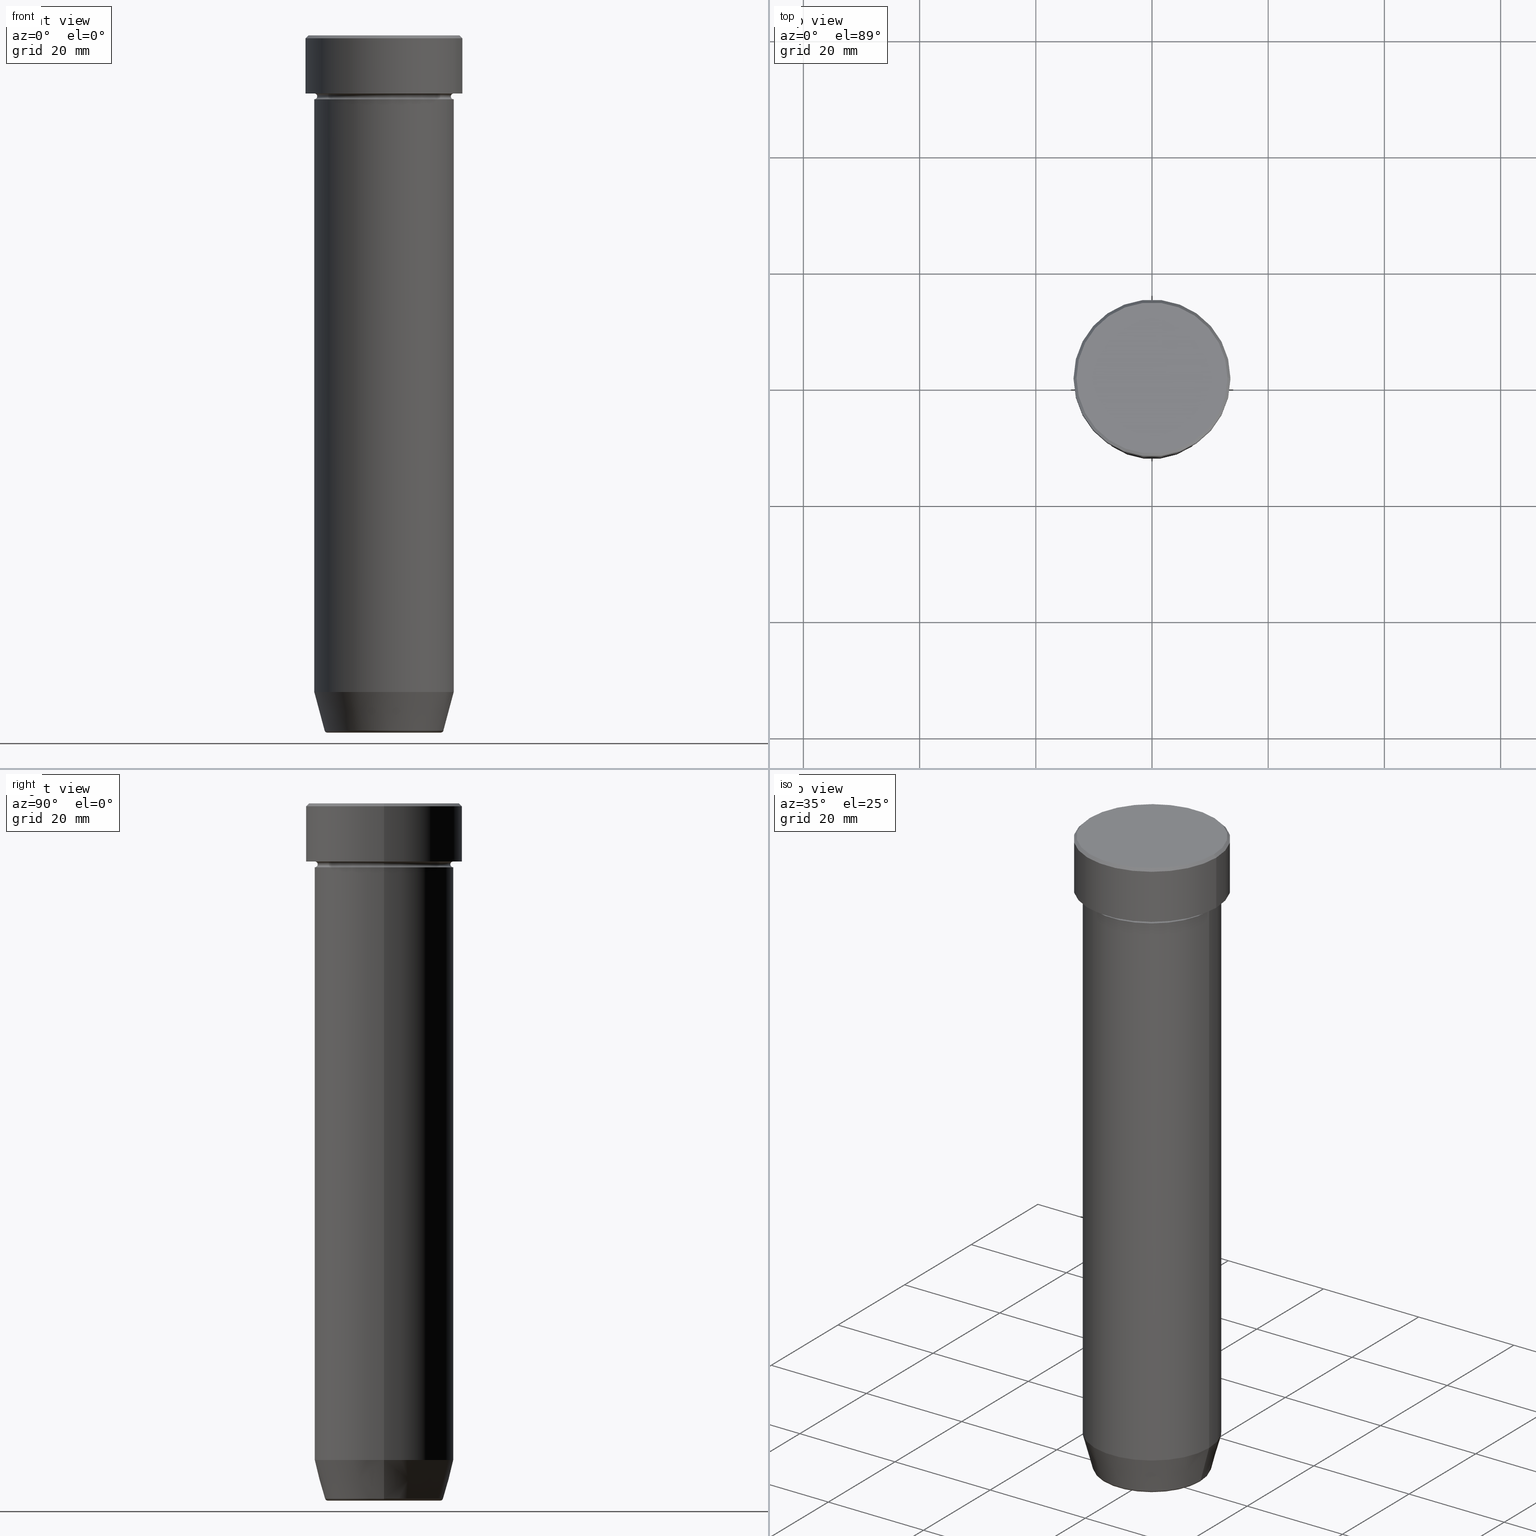
[diagram: canonical four-view strip — front | top / right | iso, engineering-drawing reading convention]
A machine part, canonical four-view strip (front | top / right | iso — engineering-drawing reading convention). The complete STEP part file that produces these views, byte-faithful:
ISO-10303-21;
HEADER;
FILE_DESCRIPTION (( 'STEP AP203' ),
    '1' );
FILE_NAME ('5000.STEP',
    '2024-01-02T19:20:09',
    ( '' ),
    ( '' ),
    'SwSTEP 2.0',
    'SolidWorks 2019',
    '' );
FILE_SCHEMA (( 'CONFIG_CONTROL_DESIGN' ));
ENDSEC;

DATA;
#1 = CC_DESIGN_PERSON_AND_ORGANIZATION_ASSIGNMENT ( #41, #599, ( #148 ) ) ;
#2 = AXIS2_PLACEMENT_3D ( 'NONE', #307, #495, #425 ) ;
#3 = CARTESIAN_POINT ( 'NONE',  ( 0.000000000000000000, 0.000000000000000000, -120.0000000000000000 ) ) ;
#4 = AXIS2_PLACEMENT_3D ( 'NONE', #247, #523, #296 ) ;
#5 = DIRECTION ( 'NONE',  ( 1.000000000000000000, 0.000000000000000000, 0.000000000000000000 ) ) ;
#6 = DATE_AND_TIME ( #195, #63 ) ;
#7 = FACE_OUTER_BOUND ( 'NONE', #492, .T. ) ;
#8 = EDGE_CURVE ( 'NONE', #401, #586, #393, .T. ) ;
#9 = DIRECTION ( 'NONE',  ( -0.000000000000000000, -0.000000000000000000, 1.000000000000000000 ) ) ;
#10 = CIRCLE ( 'NONE', #511, 0.5000000000000004441 ) ;
#11 = CARTESIAN_POINT ( 'NONE',  ( -10.12435565298213369, 1.239875974385398152E-15, -120.0000000000000000 ) ) ;
#12 = TOROIDAL_SURFACE ( 'NONE', #147, 12.00000000000000000, 0.5000000000000000000 ) ;
#13 = DIRECTION ( 'NONE',  ( -1.000000000000000000, 0.000000000000000000, 0.000000000000000000 ) ) ;
#14 = DIRECTION ( 'NONE',  ( 1.000000000000000000, 0.000000000000000000, 0.000000000000000000 ) ) ;
#15 = DIRECTION ( 'NONE',  ( 1.000000000000000000, 0.000000000000000000, 0.000000000000000000 ) ) ;
#16 = DIRECTION ( 'NONE',  ( 1.000000000000000000, 0.000000000000000000, 0.000000000000000000 ) ) ;
#17 = ORIENTED_EDGE ( 'NONE', *, *, #366, .T. ) ;
#18 = EDGE_CURVE ( 'NONE', #407, #169, #212, .T. ) ;
#19 = DIRECTION ( 'NONE',  ( 1.000000000000000000, 0.000000000000000000, 0.000000000000000000 ) ) ;
#20 = CC_DESIGN_DATE_AND_TIME_ASSIGNMENT ( #560, #406, ( #329 ) ) ;
#21 = CARTESIAN_POINT ( 'NONE',  ( 0.000000000000000000, 13.50000000000000000, -9.999999999999998224 ) ) ;
#22 = EDGE_LOOP ( 'NONE', ( #302, #497, #455, #181 ) ) ;
#23 = DIRECTION ( 'NONE',  ( 1.000000000000000000, 0.000000000000000000, 0.000000000000000000 ) ) ;
#24 = ADVANCED_FACE ( 'NONE', ( #32 ), #529, .T. ) ;
#25 = CARTESIAN_POINT ( 'NONE',  ( 0.000000000000000000, 0.000000000000000000, -27.00000000000000000 ) ) ;
#26 = VERTEX_POINT ( 'NONE', #352 ) ;
#27 = CARTESIAN_POINT ( 'NONE',  ( -12.00000000000000000, 1.469576158976823947E-15, 0.000000000000000000 ) ) ;
#28 = VERTEX_POINT ( 'NONE', #172 ) ;
#29 = TOROIDAL_SURFACE ( 'NONE', #219, 9.740692158992652949, 0.5000000000000000000 ) ;
#30 = ORIENTED_EDGE ( 'NONE', *, *, #521, .F. ) ;
#31 = DIRECTION ( 'NONE',  ( -1.000000000000000000, 1.224646799147353454E-16, 0.000000000000000000 ) ) ;
#32 = FACE_OUTER_BOUND ( 'NONE', #118, .T. ) ;
#33 = ORIENTED_EDGE ( 'NONE', *, *, #260, .F. ) ;
#34 = CARTESIAN_POINT ( 'NONE',  ( -12.00000000000000000, 0.000000000000000000, -10.49999999999999822 ) ) ;
#35 = ORIENTED_EDGE ( 'NONE', *, *, #381, .F. ) ;
#36 = COORDINATED_UNIVERSAL_TIME_OFFSET ( 1, 0, .AHEAD. ) ;
#37 = CIRCLE ( 'NONE', #531, 13.50000000000000000 ) ;
#38 = ORIENTED_EDGE ( 'NONE', *, *, #429, .F. ) ;
#39 = EDGE_CURVE ( 'NONE', #590, #169, #426, .T. ) ;
#40 = ORIENTED_EDGE ( 'NONE', *, *, #591, .T. ) ;
#41 = PERSON_AND_ORGANIZATION ( #67, #351 ) ;
#42 = TOROIDAL_SURFACE ( 'NONE', #114, 9.740692158992652949, 0.5000000000000000000 ) ;
#43 = CARTESIAN_POINT ( 'NONE',  ( 0.000000000000000000, 0.000000000000000000, -11.00000000000000000 ) ) ;
#44 =( NAMED_UNIT ( * ) PLANE_ANGLE_UNIT ( ) SI_UNIT ( $, .RADIAN. ) );
#45 = DIRECTION ( 'NONE',  ( 0.000000000000000000, 0.000000000000000000, -1.000000000000000000 ) ) ;
#46 = CIRCLE ( 'NONE', #388, 0.5000000000000004441 ) ;
#47 = CARTESIAN_POINT ( 'NONE',  ( 0.000000000000000000, 0.000000000000000000, -27.00000000000000000 ) ) ;
#48 = APPROVAL_ROLE ( '' ) ;
#49 = DIRECTION ( 'NONE',  ( 1.000000000000000000, 0.000000000000000000, 0.000000000000000000 ) ) ;
#50 = FACE_OUTER_BOUND ( 'NONE', #457, .T. ) ;
#51 = DIRECTION ( 'NONE',  ( -0.000000000000000000, -0.000000000000000000, 1.000000000000000000 ) ) ;
#52 = VECTOR ( 'NONE', #573, 1000.000000000000000 ) ;
#53 = EDGE_CURVE ( 'NONE', #543, #72, #478, .T. ) ;
#54 = PRODUCT_RELATED_PRODUCT_CATEGORY ( 'detail', '', ( #143 ) ) ;
#55 = DIRECTION ( 'NONE',  ( -0.2588190451025214611, 3.169619151431774186E-17, 0.9659258262890679791 ) ) ;
#56 = DIRECTION ( 'NONE',  ( -1.000000000000000000, 0.000000000000000000, 0.000000000000000000 ) ) ;
#57 = EDGE_CURVE ( 'NONE', #356, #394, #37, .T. ) ;
#58 = CC_DESIGN_PERSON_AND_ORGANIZATION_ASSIGNMENT ( #134, #236, ( #148 ) ) ;
#59 = LINE ( 'NONE', #11, #473 ) ;
#60 = VECTOR ( 'NONE', #244, 1000.000000000000000 ) ;
#61 = AXIS2_PLACEMENT_3D ( 'NONE', #490, #498, #358 ) ;
#62 = DIRECTION ( 'NONE',  ( -0.000000000000000000, -0.000000000000000000, 1.000000000000000000 ) ) ;
#63 = LOCAL_TIME ( 20, 20, 9.000000000000000000, #93 ) ;
#64 = EDGE_LOOP ( 'NONE', ( #35, #463, #305, #131 ) ) ;
#65 = LINE ( 'NONE', #350, #88 ) ;
#66 = CARTESIAN_POINT ( 'NONE',  ( 0.000000000000000000, 0.000000000000000000, -9.999999999999998224 ) ) ;
#67 = PERSON ( 'NEUR�EN�', 'NEUR�EN�', 'NEUR�EN�', ('NEUR�EN�'), ('NEUR�EN�'), ('NEUR�EN�') ) ;
#68 = ORIENTED_EDGE ( 'NONE', *, *, #242, .T. ) ;
#69 = FACE_OUTER_BOUND ( 'NONE', #320, .T. ) ;
#70 = ORIENTED_EDGE ( 'NONE', *, *, #429, .T. ) ;
#71 = CARTESIAN_POINT ( 'NONE',  ( -13.50000000000000000, 1.653273178848926867E-15, -0.5000000000000091038 ) ) ;
#72 = VERTEX_POINT ( 'NONE', #149 ) ;
#73 = CARTESIAN_POINT ( 'NONE',  ( 12.00000000000000000, 0.000000000000000000, -11.00000000000000000 ) ) ;
#74 = ORIENTED_EDGE ( 'NONE', *, *, #53, .T. ) ;
#75 = ADVANCED_FACE ( 'NONE', ( #567 ), #374, .T. ) ;
#76 = ADVANCED_FACE ( 'NONE', ( #7 ), #371, .T. ) ;
#77 = FACE_OUTER_BOUND ( 'NONE', #22, .T. ) ;
#78 = CIRCLE ( 'NONE', #295, 12.99999999999999645 ) ;
#79 = EDGE_LOOP ( 'NONE', ( #411, #267, #123, #119 ) ) ;
#80 = LOCAL_TIME ( 20, 20, 9.000000000000000000, #177 ) ;
#81 = DIRECTION ( 'NONE',  ( 1.000000000000000000, 0.000000000000000000, 0.000000000000000000 ) ) ;
#82 = ORIENTED_EDGE ( 'NONE', *, *, #237, .T. ) ;
#83 = VERTEX_POINT ( 'NONE', #183 ) ;
#84 = CARTESIAN_POINT ( 'NONE',  ( 0.000000000000000000, 0.000000000000000000, -10.49999999999999822 ) ) ;
#85 = ORIENTED_EDGE ( 'NONE', *, *, #187, .T. ) ;
#86 = ORIENTED_EDGE ( 'NONE', *, *, #297, .F. ) ;
#87 = PERSON_AND_ORGANIZATION ( #67, #351 ) ;
#88 = VECTOR ( 'NONE', #266, 1000.000000000000000 ) ;
#89 = CARTESIAN_POINT ( 'NONE',  ( 0.000000000000000000, 0.000000000000000000, -10.00000000000000000 ) ) ;
#90 = COORDINATED_UNIVERSAL_TIME_OFFSET ( 1, 0, .AHEAD. ) ;
#91 = DIRECTION ( 'NONE',  ( -0.000000000000000000, -0.000000000000000000, 1.000000000000000000 ) ) ;
#92 = CARTESIAN_POINT ( 'NONE',  ( 0.000000000000000000, 0.000000000000000000, -27.00000000000000000 ) ) ;
#93 = COORDINATED_UNIVERSAL_TIME_OFFSET ( 1, 0, .AHEAD. ) ;
#94 = EDGE_CURVE ( 'NONE', #169, #590, #554, .T. ) ;
#95 = EDGE_CURVE ( 'NONE', #26, #357, #113, .T. ) ;
#96 = AXIS2_PLACEMENT_3D ( 'NONE', #109, #62, #347 ) ;
#97 = DIRECTION ( 'NONE',  ( -1.000000000000000000, 0.000000000000000000, -0.000000000000000000 ) ) ;
#98 = DESIGN_CONTEXT ( 'detailed design', #464, 'design' ) ;
#99 = CARTESIAN_POINT ( 'NONE',  ( 12.00000000000000000, 0.000000000000000000, -112.9999999999999858 ) ) ;
#100 = DIRECTION ( 'NONE',  ( 0.000000000000000000, -0.000000000000000000, 1.000000000000000000 ) ) ;
#101 = AXIS2_PLACEMENT_3D ( 'NONE', #43, #417, #151 ) ;
#102 = CARTESIAN_POINT ( 'NONE',  ( 11.50000000000000000, 0.000000000000000000, -10.49999999999999822 ) ) ;
#103 = AXIS2_PLACEMENT_3D ( 'NONE', #112, #211, #81 ) ;
#104 = LOCAL_TIME ( 20, 20, 9.000000000000000000, #90 ) ;
#105 = CARTESIAN_POINT ( 'NONE',  ( 12.00000000000000000, 0.000000000000000000, 0.000000000000000000 ) ) ;
#106 = EDGE_CURVE ( 'NONE', #532, #543, #377, .T. ) ;
#107 = CC_DESIGN_PERSON_AND_ORGANIZATION_ASSIGNMENT ( #553, #416, ( #329 ) ) ;
#108 = PLANE ( 'NONE',  #548 ) ;
#109 = CARTESIAN_POINT ( 'NONE',  ( 0.000000000000000000, 0.000000000000000000, 0.000000000000000000 ) ) ;
#110 = EDGE_CURVE ( 'NONE', #158, #83, #146, .T. ) ;
#111 = ORIENTED_EDGE ( 'NONE', *, *, #95, .T. ) ;
#112 = CARTESIAN_POINT ( 'NONE',  ( 0.000000000000000000, 0.000000000000000000, -10.49999999999999822 ) ) ;
#113 = CIRCLE ( 'NONE', #239, 0.5000000000000004441 ) ;
#114 = AXIS2_PLACEMENT_3D ( 'NONE', #313, #504, #318 ) ;
#115 = CARTESIAN_POINT ( 'NONE',  ( -12.00000000000000000, 1.469576158976823947E-15, -27.00000000000000000 ) ) ;
#116 = ORIENTED_EDGE ( 'NONE', *, *, #385, .T. ) ;
#117 = FACE_OUTER_BOUND ( 'NONE', #64, .T. ) ;
#118 = EDGE_LOOP ( 'NONE', ( #354, #263, #218, #30 ) ) ;
#119 = ORIENTED_EDGE ( 'NONE', *, *, #53, .F. ) ;
#120 = FACE_OUTER_BOUND ( 'NONE', #454, .T. ) ;
#121 = EDGE_LOOP ( 'NONE', ( #265, #409 ) ) ;
#122 = DIRECTION ( 'NONE',  ( -0.000000000000000000, -0.000000000000000000, 1.000000000000000000 ) ) ;
#123 = ORIENTED_EDGE ( 'NONE', *, *, #340, .F. ) ;
#124 = DIRECTION ( 'NONE',  ( -1.000000000000000000, 0.000000000000000000, 0.000000000000000000 ) ) ;
#125 = ORIENTED_EDGE ( 'NONE', *, *, #322, .T. ) ;
#126 = APPROVAL_DATE_TIME ( #137, #225 ) ;
#127 = AXIS2_PLACEMENT_3D ( 'NONE', #328, #9, #516 ) ;
#128 = CIRCLE ( 'NONE', #139, 12.00000000000000000 ) ;
#129 = EDGE_LOOP ( 'NONE', ( #258, #361 ) ) ;
#130 = FACE_OUTER_BOUND ( 'NONE', #79, .T. ) ;
#131 = ORIENTED_EDGE ( 'NONE', *, *, #110, .F. ) ;
#132 = EDGE_CURVE ( 'NONE', #310, #593, #10, .T. ) ;
#133 = ORIENTED_EDGE ( 'NONE', *, *, #39, .T. ) ;
#134 = PERSON_AND_ORGANIZATION ( #67, #351 ) ;
#135 = EDGE_CURVE ( 'NONE', #83, #158, #252, .T. ) ;
#136 = CARTESIAN_POINT ( 'NONE',  ( -12.00000000000000000, 1.469576158976823947E-15, -27.00000000000000000 ) ) ;
#137 = DATE_AND_TIME ( #232, #104 ) ;
#138 = APPROVAL_PERSON_ORGANIZATION ( #87, #175, #316 ) ;
#139 = AXIS2_PLACEMENT_3D ( 'NONE', #484, #51, #522 ) ;
#140 = CARTESIAN_POINT ( 'NONE',  ( 0.000000000000000000, 0.000000000000000000, -120.0000000000000000 ) ) ;
#141 = DIRECTION ( 'NONE',  ( 0.000000000000000000, 0.000000000000000000, 1.000000000000000000 ) ) ;
#142 = DIRECTION ( 'NONE',  ( 1.000000000000000000, 0.000000000000000000, 0.000000000000000000 ) ) ;
#143 = PRODUCT ( '5000', '5000', '', ( #458 ) ) ;
#144 = DIRECTION ( 'NONE',  ( 1.000000000000000000, 0.000000000000000000, 0.000000000000000000 ) ) ;
#145 = CALENDAR_DATE ( 2024, 2, 1 ) ;
#146 = CIRCLE ( 'NONE', #280, 12.00000000000000000 ) ;
#147 = AXIS2_PLACEMENT_3D ( 'NONE', #382, #438, #56 ) ;
#148 = PRODUCT_DEFINITION_FORMATION_WITH_SPECIFIED_SOURCE ( 'LIBOVOLN�', '', #143, .NOT_KNOWN. ) ;
#149 = CARTESIAN_POINT ( 'NONE',  ( 10.22365507213718416, 0.000000000000000000, -119.6294095225512564 ) ) ;
#150 = DIRECTION ( 'NONE',  ( -0.000000000000000000, -0.000000000000000000, 1.000000000000000000 ) ) ;
#151 = DIRECTION ( 'NONE',  ( 1.000000000000000000, 0.000000000000000000, 0.000000000000000000 ) ) ;
#152 = CARTESIAN_POINT ( 'NONE',  ( 0.000000000000000000, 0.000000000000000000, -10.49999999999999822 ) ) ;
#153 = AXIS2_PLACEMENT_3D ( 'NONE', #215, #400, #124 ) ;
#154 = SECURITY_CLASSIFICATION ( '', '', #468 ) ;
#155 = DIRECTION ( 'NONE',  ( -1.000000000000000000, 0.000000000000000000, -0.000000000000000000 ) ) ;
#156 = CARTESIAN_POINT ( 'NONE',  ( -13.50000000000000000, 1.653273178848926867E-15, -10.00000000000000000 ) ) ;
#157 = ADVANCED_FACE ( 'NONE', ( #469 ), #324, .T. ) ;
#158 = VERTEX_POINT ( 'NONE', #136 ) ;
#159 = DIRECTION ( 'NONE',  ( 1.000000000000000000, 0.000000000000000000, 0.000000000000000000 ) ) ;
#160 = ORIENTED_EDGE ( 'NONE', *, *, #273, .T. ) ;
#161 = CARTESIAN_POINT ( 'NONE',  ( 0.000000000000000000, 0.000000000000000000, 0.000000000000000000 ) ) ;
#162 = DIRECTION ( 'NONE',  ( 0.7071067811865439090, 8.659560562354888485E-17, -0.7071067811865512365 ) ) ;
#163 = CIRCLE ( 'NONE', #186, 0.5000000000000004441 ) ;
#164 = LINE ( 'NONE', #491, #365 ) ;
#165 = AXIS2_PLACEMENT_3D ( 'NONE', #368, #141, #410 ) ;
#166 = EDGE_LOOP ( 'NONE', ( #314, #231, #348, #207 ) ) ;
#167 = DIRECTION ( 'NONE',  ( 0.000000000000000000, 0.000000000000000000, -1.000000000000000000 ) ) ;
#168 = ORIENTED_EDGE ( 'NONE', *, *, #94, .T. ) ;
#169 = VERTEX_POINT ( 'NONE', #193 ) ;
#170 = EDGE_CURVE ( 'NONE', #310, #26, #582, .T. ) ;
#171 = LINE ( 'NONE', #508, #525 ) ;
#172 = CARTESIAN_POINT ( 'NONE',  ( -10.22365507213718416, 1.360806402472381955E-15, -119.6294095225512564 ) ) ;
#173 = ORIENTED_EDGE ( 'NONE', *, *, #337, .F. ) ;
#174 = DIRECTION ( 'NONE',  ( 0.000000000000000000, 0.000000000000000000, -1.000000000000000000 ) ) ;
#175 = APPROVAL ( #594, 'NEUR�EN�' ) ;
#176 = ORIENTED_EDGE ( 'NONE', *, *, #561, .F. ) ;
#177 = COORDINATED_UNIVERSAL_TIME_OFFSET ( 1, 0, .AHEAD. ) ;
#178 = CIRCLE ( 'NONE', #256, 12.00000000000000000 ) ;
#179 = ORIENTED_EDGE ( 'NONE', *, *, #381, .T. ) ;
#180 = CARTESIAN_POINT ( 'NONE',  ( 0.000000000000000000, 0.000000000000000000, -120.0000000000000000 ) ) ;
#181 = ORIENTED_EDGE ( 'NONE', *, *, #250, .F. ) ;
#182 = APPROVAL_STATUS ( 'not_yet_approved' ) ;
#183 = CARTESIAN_POINT ( 'NONE',  ( 12.00000000000000000, 0.000000000000000000, -27.00000000000000000 ) ) ;
#184 =( NAMED_UNIT ( * ) SI_UNIT ( $, .STERADIAN. ) SOLID_ANGLE_UNIT ( ) );
#185 = VECTOR ( 'NONE', #428, 1000.000000000000000 ) ;
#186 = AXIS2_PLACEMENT_3D ( 'NONE', #34, #494, #259 ) ;
#187 = EDGE_CURVE ( 'NONE', #586, #401, #483, .T. ) ;
#188 = EDGE_CURVE ( 'NONE', #543, #532, #204, .T. ) ;
#189 = DIRECTION ( 'NONE',  ( 0.000000000000000000, 0.000000000000000000, -1.000000000000000000 ) ) ;
#190 = APPROVAL_DATE_TIME ( #6, #460 ) ;
#191 = AXIS2_PLACEMENT_3D ( 'NONE', #25, #552, #510 ) ;
#192 = ORIENTED_EDGE ( 'NONE', *, *, #322, .F. ) ;
#193 = CARTESIAN_POINT ( 'NONE',  ( 13.50000000000000000, 0.000000000000000000, -0.5000000000000091038 ) ) ;
#194 = CC_DESIGN_DATE_AND_TIME_ASSIGNMENT ( #380, #476, ( #154 ) ) ;
#195 = CALENDAR_DATE ( 2024, 2, 1 ) ;
#196 = AXIS2_PLACEMENT_3D ( 'NONE', #341, #389, #200 ) ;
#197 = LOCAL_TIME ( 20, 20, 9.000000000000000000, #245 ) ;
#198 = LINE ( 'NONE', #105, #315 ) ;
#199 = CARTESIAN_POINT ( 'NONE',  ( 0.000000000000000000, 0.000000000000000000, -9.999999999999998224 ) ) ;
#200 = DIRECTION ( 'NONE',  ( 1.000000000000000000, 0.000000000000000000, 0.000000000000000000 ) ) ;
#201 = FACE_OUTER_BOUND ( 'NONE', #121, .T. ) ;
#202 = ADVANCED_FACE ( 'NONE', ( #372 ), #376, .F. ) ;
#203 = EDGE_CURVE ( 'NONE', #312, #407, #78, .T. ) ;
#204 = CIRCLE ( 'NONE', #557, 9.740692158992652949 ) ;
#205 = LINE ( 'NONE', #338, #185 ) ;
#206 = AXIS2_PLACEMENT_3D ( 'NONE', #180, #412, #222 ) ;
#207 = ORIENTED_EDGE ( 'NONE', *, *, #94, .F. ) ;
#208 = DIRECTION ( 'NONE',  ( -0.000000000000000000, -0.000000000000000000, 1.000000000000000000 ) ) ;
#209 = AXIS2_PLACEMENT_3D ( 'NONE', #284, #335, #520 ) ;
#210 = EDGE_LOOP ( 'NONE', ( #125, #398, #547, #489 ) ) ;
#211 = DIRECTION ( 'NONE',  ( -0.000000000000000000, -0.000000000000000000, 1.000000000000000000 ) ) ;
#212 = LINE ( 'NONE', #396, #563 ) ;
#213 = CARTESIAN_POINT ( 'NONE',  ( 0.000000000000000000, 0.000000000000000000, -119.5000000000000000 ) ) ;
#214 = ORIENTED_EDGE ( 'NONE', *, *, #384, .T. ) ;
#215 = CARTESIAN_POINT ( 'NONE',  ( 0.000000000000000000, 0.000000000000000000, 0.000000000000000000 ) ) ;
#216 = LOCAL_TIME ( 20, 20, 9.000000000000000000, #36 ) ;
#217 = AXIS2_PLACEMENT_3D ( 'NONE', #330, #559, #323 ) ;
#218 = ORIENTED_EDGE ( 'NONE', *, *, #283, .F. ) ;
#219 = AXIS2_PLACEMENT_3D ( 'NONE', #213, #311, #16 ) ;
#220 = DIRECTION ( 'NONE',  ( 0.2588190451025214611, 0.000000000000000000, 0.9659258262890679791 ) ) ;
#221 = EDGE_LOOP ( 'NONE', ( #598, #40 ) ) ;
#222 = DIRECTION ( 'NONE',  ( 1.000000000000000000, 0.000000000000000000, 0.000000000000000000 ) ) ;
#223 = CARTESIAN_POINT ( 'NONE',  ( 0.000000000000000000, 0.000000000000000000, -120.0000000000000000 ) ) ;
#224 = EDGE_LOOP ( 'NONE', ( #317, #179, #440, #173 ) ) ;
#225 = APPROVAL ( #182, 'NEUR�EN�' ) ;
#226 = DIRECTION ( 'NONE',  ( 1.000000000000000000, 0.000000000000000000, 0.000000000000000000 ) ) ;
#227 = ORIENTED_EDGE ( 'NONE', *, *, #373, .F. ) ;
#228 = APPROVAL_ROLE ( '' ) ;
#229 = VERTEX_POINT ( 'NONE', #466 ) ;
#230 = PLANE ( 'NONE',  #61 ) ;
#231 = ORIENTED_EDGE ( 'NONE', *, *, #203, .F. ) ;
#232 = CALENDAR_DATE ( 2024, 2, 1 ) ;
#233 = CIRCLE ( 'NONE', #196, 11.50000000000000000 ) ;
#234 = DIRECTION ( 'NONE',  ( 1.000000000000000000, 0.000000000000000000, 0.000000000000000000 ) ) ;
#235 = CARTESIAN_POINT ( 'NONE',  ( 0.000000000000000000, 0.000000000000000000, -10.49999999999999822 ) ) ;
#236 = PERSON_AND_ORGANIZATION_ROLE ( 'design_supplier' ) ;
#237 = EDGE_CURVE ( 'NONE', #502, #357, #332, .T. ) ;
#238 = DIRECTION ( 'NONE',  ( -1.000000000000000000, 0.000000000000000000, 0.000000000000000000 ) ) ;
#239 = AXIS2_PLACEMENT_3D ( 'NONE', #370, #427, #514 ) ;
#240 = AXIS2_PLACEMENT_3D ( 'NONE', #161, #597, #23 ) ;
#241 = CARTESIAN_POINT ( 'NONE',  ( 0.000000000000000000, 0.000000000000000000, 0.000000000000000000 ) ) ;
#242 = EDGE_CURVE ( 'NONE', #356, #590, #528, .T. ) ;
#243 = CARTESIAN_POINT ( 'NONE',  ( 0.000000000000000000, 0.000000000000000000, -0.5000000000000091038 ) ) ;
#244 = DIRECTION ( 'NONE',  ( -0.000000000000000000, -0.000000000000000000, 1.000000000000000000 ) ) ;
#245 = COORDINATED_UNIVERSAL_TIME_OFFSET ( 1, 0, .AHEAD. ) ;
#246 = AXIS2_PLACEMENT_3D ( 'NONE', #456, #533, #226 ) ;
#247 = CARTESIAN_POINT ( 'NONE',  ( 12.00000000000000000, 0.000000000000000000, -10.49999999999999822 ) ) ;
#248 = CARTESIAN_POINT ( 'NONE',  ( -12.00000000000000000, 1.469576158976823947E-15, -11.00000000000000000 ) ) ;
#249 = AXIS2_PLACEMENT_3D ( 'NONE', #223, #405, #589 ) ;
#250 = EDGE_CURVE ( 'NONE', #401, #502, #205, .T. ) ;
#251 = CARTESIAN_POINT ( 'NONE',  ( -13.50000000000000000, 1.653273178848926867E-15, 0.000000000000000000 ) ) ;
#252 = CIRCLE ( 'NONE', #127, 12.00000000000000000 ) ;
#253 = ADVANCED_FACE ( 'NONE', ( #434 ), #108, .F. ) ;
#254 = AXIS2_PLACEMENT_3D ( 'NONE', #379, #481, #13 ) ;
#255 = DIRECTION ( 'NONE',  ( -0.000000000000000000, -0.000000000000000000, 1.000000000000000000 ) ) ;
#256 = AXIS2_PLACEMENT_3D ( 'NONE', #66, #342, #439 ) ;
#257 = PLANE ( 'NONE',  #558 ) ;
#258 = ORIENTED_EDGE ( 'NONE', *, *, #135, .T. ) ;
#259 = DIRECTION ( 'NONE',  ( 0.000000000000000000, 0.000000000000000000, -1.000000000000000000 ) ) ;
#260 = EDGE_CURVE ( 'NONE', #357, #502, #290, .T. ) ;
#261 = ORIENTED_EDGE ( 'NONE', *, *, #250, .T. ) ;
#262 = CARTESIAN_POINT ( 'NONE',  ( 13.50000000000000000, 0.000000000000000000, -10.00000000000000000 ) ) ;
#263 = ORIENTED_EDGE ( 'NONE', *, *, #297, .T. ) ;
#264 = CARTESIAN_POINT ( 'NONE',  ( 12.00000000000000000, 1.469576158976823947E-15, -9.999999999999998224 ) ) ;
#265 = ORIENTED_EDGE ( 'NONE', *, *, #366, .F. ) ;
#266 = DIRECTION ( 'NONE',  ( -0.000000000000000000, -0.000000000000000000, 1.000000000000000000 ) ) ;
#267 = ORIENTED_EDGE ( 'NONE', *, *, #506, .T. ) ;
#268 = AXIS2_PLACEMENT_3D ( 'NONE', #435, #122, #530 ) ;
#269 = PERSON_AND_ORGANIZATION ( #67, #351 ) ;
#270 = VERTEX_POINT ( 'NONE', #99 ) ;
#271 = DIRECTION ( 'NONE',  ( 1.224646799147353207E-16, 1.000000000000000000, 0.000000000000000000 ) ) ;
#272 = ORIENTED_EDGE ( 'NONE', *, *, #95, .F. ) ;
#273 = EDGE_CURVE ( 'NONE', #310, #502, #399, .T. ) ;
#274 = CC_DESIGN_PERSON_AND_ORGANIZATION_ASSIGNMENT ( #515, #327, ( #143 ) ) ;
#275 = ORIENTED_EDGE ( 'NONE', *, *, #506, .F. ) ;
#276 = DIRECTION ( 'NONE',  ( -1.000000000000000000, 0.000000000000000000, 0.000000000000000000 ) ) ;
#277 = ORIENTED_EDGE ( 'NONE', *, *, #39, .F. ) ;
#278 = APPROVAL_DATE_TIME ( #281, #175 ) ;
#279 = DIRECTION ( 'NONE',  ( -0.000000000000000000, -0.000000000000000000, 1.000000000000000000 ) ) ;
#280 = AXIS2_PLACEMENT_3D ( 'NONE', #92, #326, #5 ) ;
#281 = DATE_AND_TIME ( #360, #80 ) ;
#282 = CIRCLE ( 'NONE', #414, 12.00000000000000000 ) ;
#283 = EDGE_CURVE ( 'NONE', #270, #229, #128, .T. ) ;
#284 = CARTESIAN_POINT ( 'NONE',  ( 0.000000000000000000, 0.000000000000000000, 0.000000000000000000 ) ) ;
#285 = DIRECTION ( 'NONE',  ( 1.000000000000000000, 0.000000000000000000, 0.000000000000000000 ) ) ;
#286 = EDGE_CURVE ( 'NONE', #364, #593, #282, .T. ) ;
#287 = PERSON_AND_ORGANIZATION ( #67, #351 ) ;
#288 = ADVANCED_FACE ( 'NONE', ( #50 ), #488, .F. ) ;
#289 = DIRECTION ( 'NONE',  ( 1.000000000000000000, 0.000000000000000000, 0.000000000000000000 ) ) ;
#290 = CIRCLE ( 'NONE', #413, 12.00000000000000000 ) ;
#291 = AXIS2_PLACEMENT_3D ( 'NONE', #84, #167, #276 ) ;
#292 = DIRECTION ( 'NONE',  ( -0.000000000000000000, -0.000000000000000000, 1.000000000000000000 ) ) ;
#293 = CARTESIAN_POINT ( 'NONE',  ( 0.000000000000000000, 0.000000000000000000, -112.9999999999999858 ) ) ;
#294 = AXIS2_PLACEMENT_3D ( 'NONE', #243, #421, #142 ) ;
#295 = AXIS2_PLACEMENT_3D ( 'NONE', #241, #292, #49 ) ;
#296 = DIRECTION ( 'NONE',  ( 0.000000000000000000, 0.000000000000000000, -1.000000000000000000 ) ) ;
#297 = EDGE_CURVE ( 'NONE', #28, #229, #59, .T. ) ;
#298 = DIRECTION ( 'NONE',  ( -1.000000000000000000, 0.000000000000000000, 0.000000000000000000 ) ) ;
#299 = ADVANCED_FACE ( 'NONE', ( #431 ), #12, .F. ) ;
#300 = AXIS2_PLACEMENT_3D ( 'NONE', #359, #545, #538 ) ;
#301 = DIRECTION ( 'NONE',  ( -0.000000000000000000, -0.000000000000000000, 1.000000000000000000 ) ) ;
#302 = ORIENTED_EDGE ( 'NONE', *, *, #8, .T. ) ;
#303 = VECTOR ( 'NONE', #541, 1000.000000000000000 ) ;
#304 = CARTESIAN_POINT ( 'NONE',  ( 0.000000000000000000, 12.00000000000000000, -27.00000000000000000 ) ) ;
#305 = ORIENTED_EDGE ( 'NONE', *, *, #337, .T. ) ;
#306 = FACE_OUTER_BOUND ( 'NONE', #581, .T. ) ;
#307 = CARTESIAN_POINT ( 'NONE',  ( 9.740692158992652949, 0.000000000000000000, -119.5000000000000000 ) ) ;
#308 = ORIENTED_EDGE ( 'NONE', *, *, #188, .T. ) ;
#309 = DIRECTION ( 'NONE',  ( -1.000000000000000000, 0.000000000000000000, -0.000000000000000000 ) ) ;
#310 = VERTEX_POINT ( 'NONE', #102 ) ;
#311 = DIRECTION ( 'NONE',  ( -0.000000000000000000, -0.000000000000000000, 1.000000000000000000 ) ) ;
#312 = VERTEX_POINT ( 'NONE', #487 ) ;
#313 = CARTESIAN_POINT ( 'NONE',  ( 0.000000000000000000, 0.000000000000000000, -119.5000000000000000 ) ) ;
#314 = ORIENTED_EDGE ( 'NONE', *, *, #18, .F. ) ;
#315 = VECTOR ( 'NONE', #150, 1000.000000000000000 ) ;
#316 = APPROVAL_ROLE ( '' ) ;
#317 = ORIENTED_EDGE ( 'NONE', *, *, #283, .T. ) ;
#318 = DIRECTION ( 'NONE',  ( 1.000000000000000000, 0.000000000000000000, 0.000000000000000000 ) ) ;
#319 = ORIENTED_EDGE ( 'NONE', *, *, #187, .F. ) ;
#320 = EDGE_LOOP ( 'NONE', ( #192, #111, #576, #505 ) ) ;
#321 = APPLICATION_PROTOCOL_DEFINITION ( 'international standard', 'config_control_design', 1994, #464 ) ;
#322 = EDGE_CURVE ( 'NONE', #26, #310, #233, .T. ) ;
#323 = DIRECTION ( 'NONE',  ( 1.000000000000000000, 0.000000000000000000, 0.000000000000000000 ) ) ;
#324 = CONICAL_SURFACE ( 'NONE', #472, 12.99999999999999645, 0.7853981633974431720 ) ;
#325 = AXIS2_PLACEMENT_3D ( 'NONE', #293, #208, #159 ) ;
#326 = DIRECTION ( 'NONE',  ( -0.000000000000000000, -0.000000000000000000, 1.000000000000000000 ) ) ;
#327 = PERSON_AND_ORGANIZATION_ROLE ( 'design_owner' ) ;
#328 = CARTESIAN_POINT ( 'NONE',  ( 0.000000000000000000, 0.000000000000000000, -27.00000000000000000 ) ) ;
#329 = PRODUCT_DEFINITION ( 'NEZN�M�', '', #148, #98 ) ;
#330 = CARTESIAN_POINT ( 'NONE',  ( 0.000000000000000000, 0.000000000000000000, -27.00000000000000000 ) ) ;
#331 = UNCERTAINTY_MEASURE_WITH_UNIT (LENGTH_MEASURE( 1.000000000000000082E-05 ), #444, 'distance_accuracy_value', 'NONE');
#332 = CIRCLE ( 'NONE', #101, 12.00000000000000000 ) ;
#333 =( GEOMETRIC_REPRESENTATION_CONTEXT ( 3 ) GLOBAL_UNCERTAINTY_ASSIGNED_CONTEXT ( ( #331 ) ) GLOBAL_UNIT_ASSIGNED_CONTEXT ( ( #444, #44, #184 ) ) REPRESENTATION_CONTEXT ( 'NONE', 'WORKASPACE' ) );
#334 = CC_DESIGN_APPROVAL ( #460, ( #154 ) ) ;
#335 = DIRECTION ( 'NONE',  ( -0.000000000000000000, -0.000000000000000000, 1.000000000000000000 ) ) ;
#336 = CARTESIAN_POINT ( 'NONE',  ( 0.000000000000000000, 0.000000000000000000, -11.00000000000000000 ) ) ;
#337 = EDGE_CURVE ( 'NONE', #270, #83, #198, .T. ) ;
#338 = CARTESIAN_POINT ( 'NONE',  ( 12.00000000000000000, 0.000000000000000000, 0.000000000000000000 ) ) ;
#339 = CIRCLE ( 'NONE', #549, 10.22365507213718416 ) ;
#340 = EDGE_CURVE ( 'NONE', #72, #28, #583, .T. ) ;
#341 = CARTESIAN_POINT ( 'NONE',  ( 0.000000000000000000, 0.000000000000000000, -10.49999999999999822 ) ) ;
#342 = DIRECTION ( 'NONE',  ( -0.000000000000000000, -0.000000000000000000, 1.000000000000000000 ) ) ;
#343 = DIRECTION ( 'NONE',  ( -0.000000000000000000, -0.000000000000000000, 1.000000000000000000 ) ) ;
#344 = FACE_OUTER_BOUND ( 'NONE', #443, .T. ) ;
#345 = EDGE_LOOP ( 'NONE', ( #86, #214, #403, #227 ) ) ;
#346 = LINE ( 'NONE', #386, #52 ) ;
#347 = DIRECTION ( 'NONE',  ( 1.000000000000000000, 0.000000000000000000, 0.000000000000000000 ) ) ;
#348 = ORIENTED_EDGE ( 'NONE', *, *, #561, .T. ) ;
#349 = TOROIDAL_SURFACE ( 'NONE', #103, 12.00000000000000000, 0.5000000000000000000 ) ;
#350 = CARTESIAN_POINT ( 'NONE',  ( 13.50000000000000000, 0.000000000000000000, 0.000000000000000000 ) ) ;
#351 = ORGANIZATION ( 'NEUR�EN�', 'NEUR�EN�', '' ) ;
#352 = CARTESIAN_POINT ( 'NONE',  ( -11.50000000000000000, 1.438959988998139963E-15, -10.49999999999999822 ) ) ;
#353 = DIRECTION ( 'NONE',  ( -0.7071067811865439090, 0.000000000000000000, -0.7071067811865512365 ) ) ;
#354 = ORIENTED_EDGE ( 'NONE', *, *, #340, .T. ) ;
#355 = LINE ( 'NONE', #27, #303 ) ;
#356 = VERTEX_POINT ( 'NONE', #156 ) ;
#357 = VERTEX_POINT ( 'NONE', #248 ) ;
#358 = DIRECTION ( 'NONE',  ( 1.000000000000000000, 0.000000000000000000, 0.000000000000000000 ) ) ;
#359 = CARTESIAN_POINT ( 'NONE',  ( 0.000000000000000000, 0.000000000000000000, -0.5000000000000091038 ) ) ;
#360 = CALENDAR_DATE ( 2024, 2, 1 ) ;
#361 = ORIENTED_EDGE ( 'NONE', *, *, #110, .T. ) ;
#362 = CARTESIAN_POINT ( 'NONE',  ( 12.99999999999999645, 1.622657008870242882E-15, 0.000000000000000000 ) ) ;
#363 = AXIS2_PLACEMENT_3D ( 'NONE', #235, #512, #289 ) ;
#364 = VERTEX_POINT ( 'NONE', #571 ) ;
#365 = VECTOR ( 'NONE', #353, 1000.000000000000000 ) ;
#366 = EDGE_CURVE ( 'NONE', #394, #356, #535, .T. ) ;
#367 = ORIENTED_EDGE ( 'NONE', *, *, #486, .F. ) ;
#368 = CARTESIAN_POINT ( 'NONE',  ( 0.000000000000000000, 0.000000000000000000, 0.000000000000000000 ) ) ;
#369 = AXIS2_PLACEMENT_3D ( 'NONE', #555, #279, #564 ) ;
#370 = CARTESIAN_POINT ( 'NONE',  ( -12.00000000000000000, 1.469576158976823947E-15, -10.49999999999999822 ) ) ;
#371 = CYLINDRICAL_SURFACE ( 'NONE', #369, 13.50000000000000000 ) ;
#372 = FACE_OUTER_BOUND ( 'NONE', #129, .T. ) ;
#373 = EDGE_CURVE ( 'NONE', #229, #270, #503, .T. ) ;
#374 = CYLINDRICAL_SURFACE ( 'NONE', #209, 13.50000000000000000 ) ;
#375 = EDGE_LOOP ( 'NONE', ( #459, #390, #70, #168 ) ) ;
#376 = PLANE ( 'NONE',  #595 ) ;
#377 = CIRCLE ( 'NONE', #534, 9.740692158992652949 ) ;
#378 = CONICAL_SURFACE ( 'NONE', #206, 10.12435565298213369, 0.2617993877991502405 ) ;
#379 = CARTESIAN_POINT ( 'NONE',  ( 0.000000000000000000, 0.000000000000000000, -119.6294095225512564 ) ) ;
#380 = DATE_AND_TIME ( #145, #197 ) ;
#381 = EDGE_CURVE ( 'NONE', #229, #158, #346, .T. ) ;
#382 = CARTESIAN_POINT ( 'NONE',  ( 0.000000000000000000, 0.000000000000000000, -10.49999999999999822 ) ) ;
#383 = PRODUCT_DEFINITION_SHAPE ( 'NONE', 'NONE',  #329 ) ;
#384 = EDGE_CURVE ( 'NONE', #28, #72, #339, .T. ) ;
#385 = EDGE_CURVE ( 'NONE', #26, #364, #163, .T. ) ;
#386 = CARTESIAN_POINT ( 'NONE',  ( -12.00000000000000000, 1.469576158976823947E-15, 0.000000000000000000 ) ) ;
#387 = CYLINDRICAL_SURFACE ( 'NONE', #96, 12.00000000000000000 ) ;
#388 = AXIS2_PLACEMENT_3D ( 'NONE', #453, #271, #31 ) ;
#389 = DIRECTION ( 'NONE',  ( -0.000000000000000000, -0.000000000000000000, 1.000000000000000000 ) ) ;
#390 = ORIENTED_EDGE ( 'NONE', *, *, #57, .T. ) ;
#391 = CARTESIAN_POINT ( 'NONE',  ( 0.000000000000000000, 8.572527594031472993E-15, -120.0000000000000000 ) ) ;
#392 = APPLICATION_CONTEXT ( 'configuration controlled 3d designs of mechanical parts and assemblies' ) ;
#393 = CIRCLE ( 'NONE', #191, 12.00000000000000000 ) ;
#394 = VERTEX_POINT ( 'NONE', #262 ) ;
#395 = CARTESIAN_POINT ( 'NONE',  ( 0.000000000000000000, 0.000000000000000000, 0.000000000000000000 ) ) ;
#396 = CARTESIAN_POINT ( 'NONE',  ( 12.99999999999999645, 1.592040838891558701E-15, 0.000000000000000000 ) ) ;
#397 = CARTESIAN_POINT ( 'NONE',  ( 9.740692158992652949, 0.000000000000000000, -120.0000000000000000 ) ) ;
#398 = ORIENTED_EDGE ( 'NONE', *, *, #132, .T. ) ;
#399 = CIRCLE ( 'NONE', #4, 0.5000000000000004441 ) ;
#400 = DIRECTION ( 'NONE',  ( 0.000000000000000000, 0.000000000000000000, -1.000000000000000000 ) ) ;
#401 = VERTEX_POINT ( 'NONE', #550 ) ;
#402 = EDGE_CURVE ( 'NONE', #407, #312, #518, .T. ) ;
#403 = ORIENTED_EDGE ( 'NONE', *, *, #521, .T. ) ;
#404 = FACE_OUTER_BOUND ( 'NONE', #446, .T. ) ;
#405 = DIRECTION ( 'NONE',  ( -0.000000000000000000, -0.000000000000000000, 1.000000000000000000 ) ) ;
#406 = DATE_TIME_ROLE ( 'creation_date' ) ;
#407 = VERTEX_POINT ( 'NONE', #362 ) ;
#408 = CYLINDRICAL_SURFACE ( 'NONE', #437, 12.00000000000000000 ) ;
#409 = ORIENTED_EDGE ( 'NONE', *, *, #57, .F. ) ;
#410 = DIRECTION ( 'NONE',  ( 1.000000000000000000, 0.000000000000000000, 0.000000000000000000 ) ) ;
#411 = ORIENTED_EDGE ( 'NONE', *, *, #106, .F. ) ;
#412 = DIRECTION ( 'NONE',  ( -0.000000000000000000, -0.000000000000000000, 1.000000000000000000 ) ) ;
#413 = AXIS2_PLACEMENT_3D ( 'NONE', #336, #301, #15 ) ;
#414 = AXIS2_PLACEMENT_3D ( 'NONE', #199, #255, #485 ) ;
#415 = ORIENTED_EDGE ( 'NONE', *, *, #203, .T. ) ;
#416 = PERSON_AND_ORGANIZATION_ROLE ( 'creator' ) ;
#417 = DIRECTION ( 'NONE',  ( -0.000000000000000000, -0.000000000000000000, 1.000000000000000000 ) ) ;
#418 = ADVANCED_FACE ( 'NONE', ( #461 ), #378, .T. ) ;
#419 = CARTESIAN_POINT ( 'NONE',  ( 0.000000000000000000, 0.000000000000000000, 0.000000000000000000 ) ) ;
#420 = PERSON_AND_ORGANIZATION ( #67, #351 ) ;
#421 = DIRECTION ( 'NONE',  ( 0.000000000000000000, 0.000000000000000000, -1.000000000000000000 ) ) ;
#422 = APPROVAL_STATUS ( 'not_yet_approved' ) ;
#423 = CONICAL_SURFACE ( 'NONE', #153, 12.99999999999999645, 0.7853981633974431720 ) ;
#424 = ADVANCED_FACE ( 'NONE', ( #69 ), #349, .F. ) ;
#425 = DIRECTION ( 'NONE',  ( 0.000000000000000000, 0.000000000000000000, -1.000000000000000000 ) ) ;
#426 = CIRCLE ( 'NONE', #300, 13.50000000000000000 ) ;
#427 = DIRECTION ( 'NONE',  ( 1.224646799147353207E-16, 1.000000000000000000, 0.000000000000000000 ) ) ;
#428 = DIRECTION ( 'NONE',  ( -0.000000000000000000, -0.000000000000000000, 1.000000000000000000 ) ) ;
#429 = EDGE_CURVE ( 'NONE', #394, #169, #65, .T. ) ;
#430 = PERSON_AND_ORGANIZATION_ROLE ( 'classification_officer' ) ;
#431 = FACE_OUTER_BOUND ( 'NONE', #210, .T. ) ;
#432 = ADVANCED_BREP_SHAPE_REPRESENTATION ( '5000', ( #449, #441, #165 ), #333 ) ;
#433 = CARTESIAN_POINT ( 'NONE',  ( 0.000000000000000000, 0.000000000000000000, -10.00000000000000000 ) ) ;
#434 = FACE_OUTER_BOUND ( 'NONE', #500, .T. ) ;
#435 = CARTESIAN_POINT ( 'NONE',  ( 0.000000000000000000, 0.000000000000000000, 0.000000000000000000 ) ) ;
#436 = EDGE_LOOP ( 'NONE', ( #275, #588, #74, #551 ) ) ;
#437 = AXIS2_PLACEMENT_3D ( 'NONE', #395, #447, #580 ) ;
#438 = DIRECTION ( 'NONE',  ( 0.000000000000000000, 0.000000000000000000, -1.000000000000000000 ) ) ;
#439 = DIRECTION ( 'NONE',  ( -1.000000000000000000, 0.000000000000000000, 0.000000000000000000 ) ) ;
#440 = ORIENTED_EDGE ( 'NONE', *, *, #135, .F. ) ;
#441 = MANIFOLD_SOLID_BREP ( 'Zaoblit4', #462 ) ;
#442 = ADVANCED_FACE ( 'NONE', ( #306 ), #568, .F. ) ;
#443 = EDGE_LOOP ( 'NONE', ( #367, #85, #261, #33 ) ) ;
#444 =( LENGTH_UNIT ( ) NAMED_UNIT ( * ) SI_UNIT ( .MILLI., .METRE. ) );
#445 = CLOSED_SHELL ( 'NONE', ( #480, #299, #424, #572, #76, #493, #499, #75, #565, #526, #288, #442, #157 ) ) ;
#446 = EDGE_LOOP ( 'NONE', ( #415, #579 ) ) ;
#447 = DIRECTION ( 'NONE',  ( -0.000000000000000000, -0.000000000000000000, 1.000000000000000000 ) ) ;
#448 = ORIENTED_EDGE ( 'NONE', *, *, #106, .T. ) ;
#449 = MANIFOLD_SOLID_BREP ( 'Zkosen�1', #445 ) ;
#450 = CC_DESIGN_SECURITY_CLASSIFICATION ( #154, ( #148 ) ) ;
#451 = EDGE_LOOP ( 'NONE', ( #507, #536, #277, #176 ) ) ;
#452 = AXIS2_PLACEMENT_3D ( 'NONE', #433, #343, #19 ) ;
#453 = CARTESIAN_POINT ( 'NONE',  ( -9.740692158992652949, 1.192890747399007470E-15, -119.5000000000000000 ) ) ;
#454 = EDGE_LOOP ( 'NONE', ( #540, #319 ) ) ;
#455 = ORIENTED_EDGE ( 'NONE', *, *, #237, .F. ) ;
#456 = CARTESIAN_POINT ( 'NONE',  ( 0.000000000000000000, 0.000000000000000000, 0.000000000000000000 ) ) ;
#457 = EDGE_LOOP ( 'NONE', ( #272, #596, #160, #82 ) ) ;
#458 = MECHANICAL_CONTEXT ( 'NONE', #392, 'mechanical' ) ;
#459 = ORIENTED_EDGE ( 'NONE', *, *, #242, .F. ) ;
#460 = APPROVAL ( #422, 'NEUR�EN�' ) ;
#461 = FACE_OUTER_BOUND ( 'NONE', #345, .T. ) ;
#462 = CLOSED_SHELL ( 'NONE', ( #519, #24, #477, #202, #474, #418, #253, #527 ) ) ;
#463 = ORIENTED_EDGE ( 'NONE', *, *, #373, .T. ) ;
#464 = APPLICATION_CONTEXT ( 'configuration controlled 3d designs of mechanical parts and assemblies' ) ;
#465 = AXIS2_PLACEMENT_3D ( 'NONE', #152, #575, #14 ) ;
#466 = CARTESIAN_POINT ( 'NONE',  ( -12.00000000000000000, 1.469576158976823947E-15, -112.9999999999999858 ) ) ;
#467 = CC_DESIGN_APPROVAL ( #225, ( #329 ) ) ;
#468 = SECURITY_CLASSIFICATION_LEVEL ( 'unclassified' ) ;
#469 = FACE_OUTER_BOUND ( 'NONE', #166, .T. ) ;
#470 = DIRECTION ( 'NONE',  ( 0.000000000000000000, 0.000000000000000000, -1.000000000000000000 ) ) ;
#471 = DIRECTION ( 'NONE',  ( -1.224646799147353207E-16, 1.000000000000000000, 0.000000000000000000 ) ) ;
#472 = AXIS2_PLACEMENT_3D ( 'NONE', #419, #45, #238 ) ;
#473 = VECTOR ( 'NONE', #55, 1000.000000000000114 ) ;
#474 = ADVANCED_FACE ( 'NONE', ( #117 ), #585, .T. ) ;
#475 = DIRECTION ( 'NONE',  ( -1.000000000000000000, -1.224646799147353454E-16, 0.000000000000000000 ) ) ;
#476 = DATE_TIME_ROLE ( 'classification_date' ) ;
#477 = ADVANCED_FACE ( 'NONE', ( #544 ), #408, .T. ) ;
#478 = CIRCLE ( 'NONE', #2, 0.5000000000000004441 ) ;
#479 = DIRECTION ( 'NONE',  ( -0.000000000000000000, -0.000000000000000000, 1.000000000000000000 ) ) ;
#480 = ADVANCED_FACE ( 'NONE', ( #537 ), #423, .T. ) ;
#481 = DIRECTION ( 'NONE',  ( -0.000000000000000000, -0.000000000000000000, 1.000000000000000000 ) ) ;
#482 = APPROVAL_PERSON_ORGANIZATION ( #269, #225, #228 ) ;
#483 = CIRCLE ( 'NONE', #217, 12.00000000000000000 ) ;
#484 = CARTESIAN_POINT ( 'NONE',  ( 0.000000000000000000, 0.000000000000000000, -112.9999999999999858 ) ) ;
#485 = DIRECTION ( 'NONE',  ( -1.000000000000000000, 0.000000000000000000, 0.000000000000000000 ) ) ;
#486 = EDGE_CURVE ( 'NONE', #586, #357, #355, .T. ) ;
#487 = CARTESIAN_POINT ( 'NONE',  ( -12.99999999999999645, 0.000000000000000000, 0.000000000000000000 ) ) ;
#488 = TOROIDAL_SURFACE ( 'NONE', #465, 12.00000000000000000, 0.5000000000000000000 ) ;
#489 = ORIENTED_EDGE ( 'NONE', *, *, #385, .F. ) ;
#490 = CARTESIAN_POINT ( 'NONE',  ( 0.000000000000000000, 0.000000000000000000, 0.000000000000000000 ) ) ;
#491 = CARTESIAN_POINT ( 'NONE',  ( -12.99999999999999645, 0.000000000000000000, 0.000000000000000000 ) ) ;
#492 = EDGE_LOOP ( 'NONE', ( #17, #68, #133, #38 ) ) ;
#493 = ADVANCED_FACE ( 'NONE', ( #120 ), #592, .T. ) ;
#494 = DIRECTION ( 'NONE',  ( -0.000000000000000000, -1.000000000000000000, -0.000000000000000000 ) ) ;
#495 = DIRECTION ( 'NONE',  ( 0.000000000000000000, -1.000000000000000000, 0.000000000000000000 ) ) ;
#496 = CARTESIAN_POINT ( 'NONE',  ( -9.740692158992652949, 1.222463696683474013E-15, -120.0000000000000000 ) ) ;
#497 = ORIENTED_EDGE ( 'NONE', *, *, #486, .T. ) ;
#498 = DIRECTION ( 'NONE',  ( 0.000000000000000000, -0.000000000000000000, 1.000000000000000000 ) ) ;
#499 = ADVANCED_FACE ( 'NONE', ( #404 ), #230, .T. ) ;
#500 = EDGE_LOOP ( 'NONE', ( #308, #448 ) ) ;
#501 = FACE_BOUND ( 'NONE', #221, .T. ) ;
#502 = VERTEX_POINT ( 'NONE', #73 ) ;
#503 = CIRCLE ( 'NONE', #325, 12.00000000000000000 ) ;
#504 = DIRECTION ( 'NONE',  ( -0.000000000000000000, -0.000000000000000000, 1.000000000000000000 ) ) ;
#505 = ORIENTED_EDGE ( 'NONE', *, *, #273, .F. ) ;
#506 = EDGE_CURVE ( 'NONE', #532, #28, #46, .T. ) ;
#507 = ORIENTED_EDGE ( 'NONE', *, *, #402, .F. ) ;
#508 = CARTESIAN_POINT ( 'NONE',  ( 10.12435565298213369, 0.000000000000000000, -120.0000000000000000 ) ) ;
#509 = ORIENTED_EDGE ( 'NONE', *, *, #170, .T. ) ;
#510 = DIRECTION ( 'NONE',  ( 1.000000000000000000, 0.000000000000000000, 0.000000000000000000 ) ) ;
#511 = AXIS2_PLACEMENT_3D ( 'NONE', #562, #471, #475 ) ;
#512 = DIRECTION ( 'NONE',  ( -0.000000000000000000, -0.000000000000000000, 1.000000000000000000 ) ) ;
#513 = CALENDAR_DATE ( 2024, 2, 1 ) ;
#514 = DIRECTION ( 'NONE',  ( -1.000000000000000000, 1.224646799147353454E-16, 0.000000000000000000 ) ) ;
#515 = PERSON_AND_ORGANIZATION ( #67, #351 ) ;
#516 = DIRECTION ( 'NONE',  ( 1.000000000000000000, 0.000000000000000000, 0.000000000000000000 ) ) ;
#517 = DIRECTION ( 'NONE',  ( 0.000000000000000000, 0.000000000000000000, -1.000000000000000000 ) ) ;
#518 = CIRCLE ( 'NONE', #240, 12.99999999999999645 ) ;
#519 = ADVANCED_FACE ( 'NONE', ( #130 ), #42, .T. ) ;
#520 = DIRECTION ( 'NONE',  ( 1.000000000000000000, 0.000000000000000000, 0.000000000000000000 ) ) ;
#521 = EDGE_CURVE ( 'NONE', #72, #270, #171, .T. ) ;
#522 = DIRECTION ( 'NONE',  ( 1.000000000000000000, 0.000000000000000000, 0.000000000000000000 ) ) ;
#523 = DIRECTION ( 'NONE',  ( 0.000000000000000000, -1.000000000000000000, 0.000000000000000000 ) ) ;
#524 = CC_DESIGN_APPROVAL ( #175, ( #148 ) ) ;
#525 = VECTOR ( 'NONE', #220, 1000.000000000000114 ) ;
#526 = ADVANCED_FACE ( 'NONE', ( #344 ), #587, .T. ) ;
#527 = ADVANCED_FACE ( 'NONE', ( #578 ), #29, .T. ) ;
#528 = LINE ( 'NONE', #251, #60 ) ;
#529 = CONICAL_SURFACE ( 'NONE', #249, 10.12435565298213369, 0.2617993877991502405 ) ;
#530 = DIRECTION ( 'NONE',  ( 1.000000000000000000, 0.000000000000000000, 0.000000000000000000 ) ) ;
#531 = AXIS2_PLACEMENT_3D ( 'NONE', #89, #91, #285 ) ;
#532 = VERTEX_POINT ( 'NONE', #496 ) ;
#533 = DIRECTION ( 'NONE',  ( -0.000000000000000000, -0.000000000000000000, 1.000000000000000000 ) ) ;
#534 = AXIS2_PLACEMENT_3D ( 'NONE', #3, #470, #234 ) ;
#535 = CIRCLE ( 'NONE', #452, 13.50000000000000000 ) ;
#536 = ORIENTED_EDGE ( 'NONE', *, *, #18, .T. ) ;
#537 = FACE_OUTER_BOUND ( 'NONE', #451, .T. ) ;
#538 = DIRECTION ( 'NONE',  ( 1.000000000000000000, 0.000000000000000000, 0.000000000000000000 ) ) ;
#539 = DIRECTION ( 'NONE',  ( 0.000000000000000000, 0.000000000000000000, -1.000000000000000000 ) ) ;
#540 = ORIENTED_EDGE ( 'NONE', *, *, #8, .F. ) ;
#541 = DIRECTION ( 'NONE',  ( -0.000000000000000000, -0.000000000000000000, 1.000000000000000000 ) ) ;
#542 = ORIENTED_EDGE ( 'NONE', *, *, #132, .F. ) ;
#543 = VERTEX_POINT ( 'NONE', #397 ) ;
#544 = FACE_OUTER_BOUND ( 'NONE', #224, .T. ) ;
#545 = DIRECTION ( 'NONE',  ( 0.000000000000000000, 0.000000000000000000, -1.000000000000000000 ) ) ;
#546 = APPLICATION_PROTOCOL_DEFINITION ( 'international standard', 'config_control_design', 1994, #392 ) ;
#547 = ORIENTED_EDGE ( 'NONE', *, *, #286, .F. ) ;
#548 = AXIS2_PLACEMENT_3D ( 'NONE', #391, #100, #577 ) ;
#549 = AXIS2_PLACEMENT_3D ( 'NONE', #569, #479, #298 ) ;
#550 = CARTESIAN_POINT ( 'NONE',  ( 12.00000000000000000, 0.000000000000000000, -27.00000000000000000 ) ) ;
#551 = ORIENTED_EDGE ( 'NONE', *, *, #384, .F. ) ;
#552 = DIRECTION ( 'NONE',  ( -0.000000000000000000, -0.000000000000000000, 1.000000000000000000 ) ) ;
#553 = PERSON_AND_ORGANIZATION ( #67, #351 ) ;
#554 = CIRCLE ( 'NONE', #294, 13.50000000000000000 ) ;
#555 = CARTESIAN_POINT ( 'NONE',  ( 0.000000000000000000, 0.000000000000000000, 0.000000000000000000 ) ) ;
#556 = APPROVAL_PERSON_ORGANIZATION ( #287, #460, #48 ) ;
#557 = AXIS2_PLACEMENT_3D ( 'NONE', #140, #189, #144 ) ;
#558 = AXIS2_PLACEMENT_3D ( 'NONE', #21, #539, #155 ) ;
#559 = DIRECTION ( 'NONE',  ( -0.000000000000000000, -0.000000000000000000, 1.000000000000000000 ) ) ;
#560 = DATE_AND_TIME ( #513, #216 ) ;
#561 = EDGE_CURVE ( 'NONE', #312, #590, #164, .T. ) ;
#562 = CARTESIAN_POINT ( 'NONE',  ( 12.00000000000000000, 1.469576158976823947E-15, -10.49999999999999822 ) ) ;
#563 = VECTOR ( 'NONE', #162, 1000.000000000000000 ) ;
#564 = DIRECTION ( 'NONE',  ( 1.000000000000000000, 0.000000000000000000, 0.000000000000000000 ) ) ;
#565 = ADVANCED_FACE ( 'NONE', ( #501, #201 ), #257, .T. ) ;
#566 = CC_DESIGN_PERSON_AND_ORGANIZATION_ASSIGNMENT ( #420, #430, ( #154 ) ) ;
#567 = FACE_OUTER_BOUND ( 'NONE', #375, .T. ) ;
#568 = TOROIDAL_SURFACE ( 'NONE', #291, 12.00000000000000000, 0.5000000000000000000 ) ;
#569 = CARTESIAN_POINT ( 'NONE',  ( 0.000000000000000000, 0.000000000000000000, -119.6294095225512564 ) ) ;
#570 = SHAPE_DEFINITION_REPRESENTATION ( #383, #432 ) ;
#571 = CARTESIAN_POINT ( 'NONE',  ( -12.00000000000000000, 0.000000000000000000, -9.999999999999998224 ) ) ;
#572 = ADVANCED_FACE ( 'NONE', ( #77 ), #387, .T. ) ;
#573 = DIRECTION ( 'NONE',  ( -0.000000000000000000, -0.000000000000000000, 1.000000000000000000 ) ) ;
#574 = AXIS2_PLACEMENT_3D ( 'NONE', #304, #174, #309 ) ;
#575 = DIRECTION ( 'NONE',  ( -0.000000000000000000, -0.000000000000000000, 1.000000000000000000 ) ) ;
#576 = ORIENTED_EDGE ( 'NONE', *, *, #260, .T. ) ;
#577 = DIRECTION ( 'NONE',  ( 1.000000000000000000, 0.000000000000000000, 0.000000000000000000 ) ) ;
#578 = FACE_OUTER_BOUND ( 'NONE', #436, .T. ) ;
#579 = ORIENTED_EDGE ( 'NONE', *, *, #402, .T. ) ;
#580 = DIRECTION ( 'NONE',  ( 1.000000000000000000, 0.000000000000000000, 0.000000000000000000 ) ) ;
#581 = EDGE_LOOP ( 'NONE', ( #542, #509, #116, #584 ) ) ;
#582 = CIRCLE ( 'NONE', #363, 11.50000000000000000 ) ;
#583 = CIRCLE ( 'NONE', #254, 10.22365507213718416 ) ;
#584 = ORIENTED_EDGE ( 'NONE', *, *, #591, .F. ) ;
#585 = CYLINDRICAL_SURFACE ( 'NONE', #246, 12.00000000000000000 ) ;
#586 = VERTEX_POINT ( 'NONE', #115 ) ;
#587 = CYLINDRICAL_SURFACE ( 'NONE', #268, 12.00000000000000000 ) ;
#588 = ORIENTED_EDGE ( 'NONE', *, *, #188, .F. ) ;
#589 = DIRECTION ( 'NONE',  ( 1.000000000000000000, 0.000000000000000000, 0.000000000000000000 ) ) ;
#590 = VERTEX_POINT ( 'NONE', #71 ) ;
#591 = EDGE_CURVE ( 'NONE', #593, #364, #178, .T. ) ;
#592 = PLANE ( 'NONE',  #574 ) ;
#593 = VERTEX_POINT ( 'NONE', #264 ) ;
#594 = APPROVAL_STATUS ( 'not_yet_approved' ) ;
#595 = AXIS2_PLACEMENT_3D ( 'NONE', #47, #517, #97 ) ;
#596 = ORIENTED_EDGE ( 'NONE', *, *, #170, .F. ) ;
#597 = DIRECTION ( 'NONE',  ( -0.000000000000000000, -0.000000000000000000, 1.000000000000000000 ) ) ;
#598 = ORIENTED_EDGE ( 'NONE', *, *, #286, .T. ) ;
#599 = PERSON_AND_ORGANIZATION_ROLE ( 'creator' ) ;
ENDSEC;
END-ISO-10303-21;
